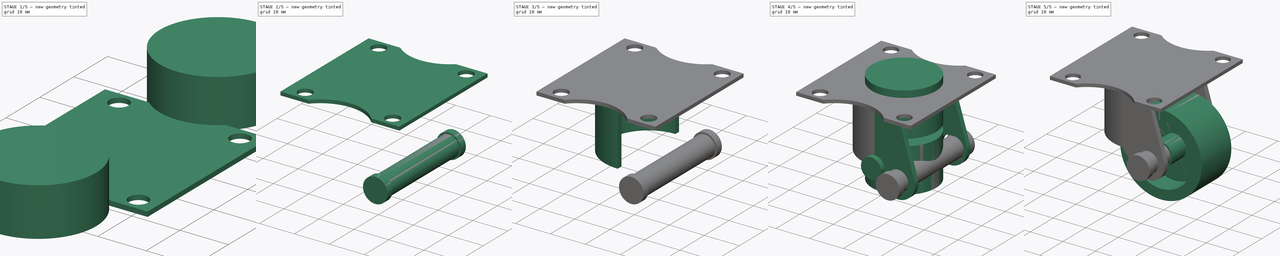
[diagram: build sequence overview — one tinted view per stage of 5, left to right]
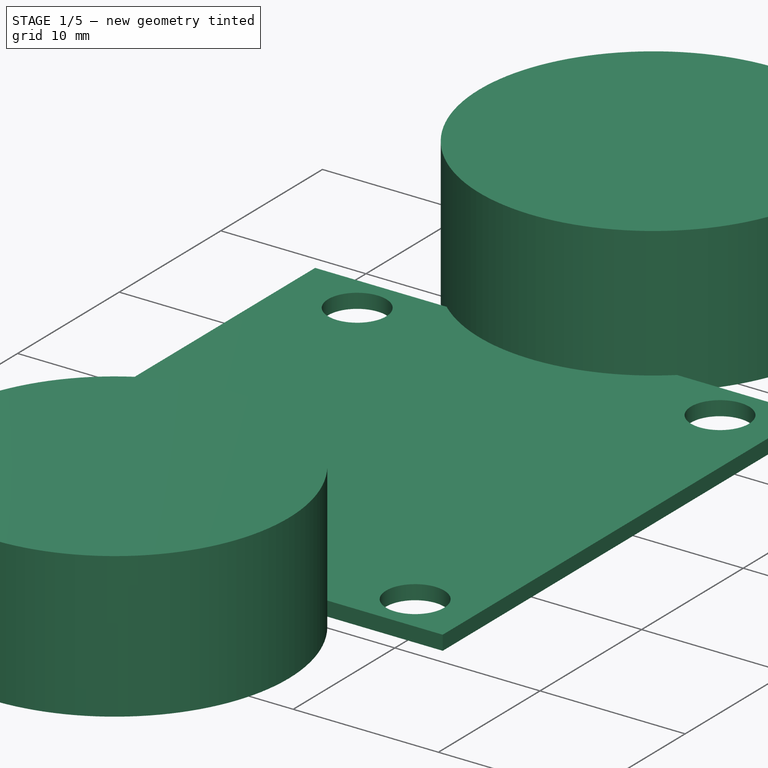
[diagram: stage 1 of 5 — iso view after this stage's code; geometry added in this stage tinted green]
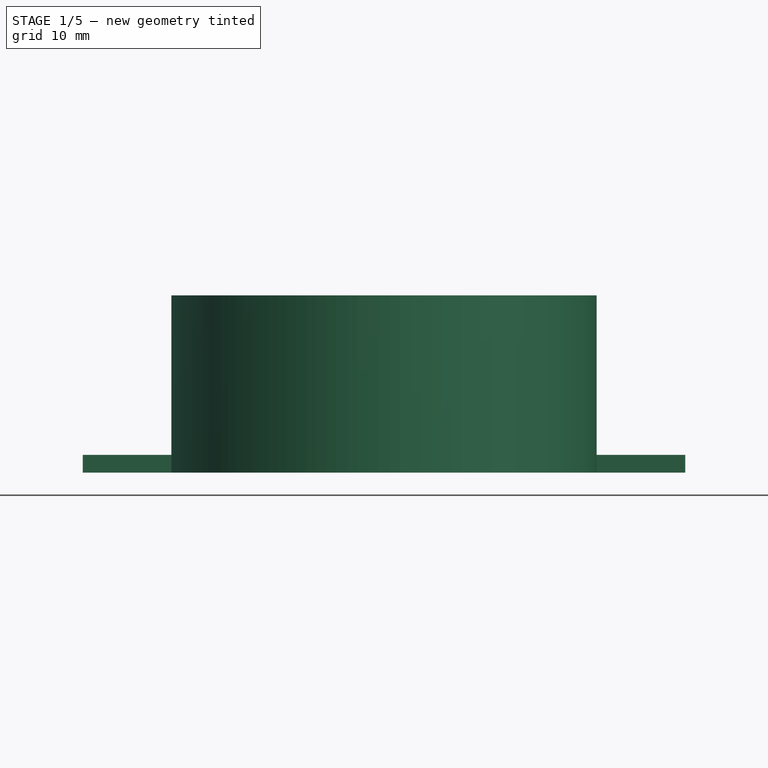
[diagram: stage 1 of 5 — front view after this stage's code; geometry added in this stage tinted green]
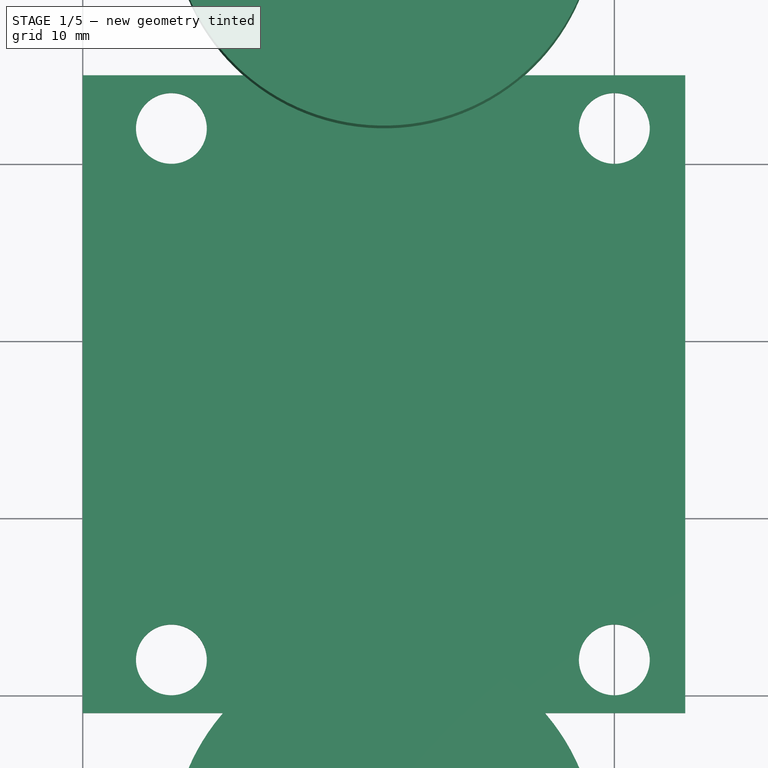
[diagram: stage 1 of 5 — top view after this stage's code; geometry added in this stage tinted green]
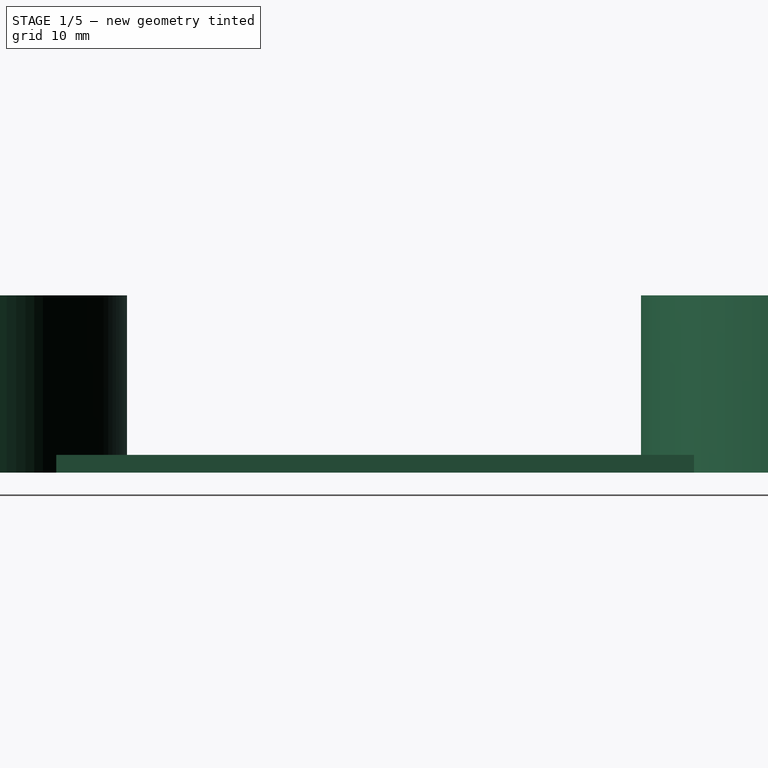
[diagram: stage 1 of 5 — right view after this stage's code; geometry added in this stage tinted green]
FCSTD DOCUMENT  (FreeCAD 0.17R13541 (Git))
Label: ruedaLoca(inexacta)
License: All rights reserved
LicenseURL: http://en.wikipedia.org/wiki/All_rights_reserved
objects: Part::Cylinder×14, Part::MultiFuse×6, Part::Cut×6, Part::Box×3, Sketcher::SketchObject×2, PartDesign::Pad×2, PartDesign::Body×2, Part::Sphere×1, Part::FeaturePython×1, Part::Feature×1
note: 40 computed .brp shape members not serialized (recipe doc carries the construction recipe); baked Part::Feature solids carry a one-line shape summary decoded from their .brp

FEATURE [Part::Box] Box002  label="Cubo002"
  AttacherType = Attacher::AttachEngine3D
  Height = 1
  Length = 34
  Placement = pos=(0,-1,0) rot=(0,0,1;0rad)
  Width = 36
FEATURE [Part::Cylinder] Cylinder011  label="Cilindro011"
  Angle = 360
  AttacherType = Attacher::AttachEngine3D
  Height = 10
  Radius = 2
FEATURE [Part::FeaturePython] Array  # Draft array (typed FeaturePython)
  Angle = 360
  ArrayType = 0
  Axis = (0,0,1)
  Base = -> Cylinder011
  Center = (0,0,0)
  Fuse = false
  IntervalAxis = (0,0,0)
  IntervalX = (25,0,0)
  IntervalY = (0,30,0)
  IntervalZ = (0,0,0)
  NumberPolar = 1
  NumberX = 2
  NumberY = 2
  NumberZ = 1
  Placement = pos=(5,2,0) rot=(0,0,1;0rad)
FEATURE [Part::Cut] Cut004
  Base = -> Box002
  Tool = -> Array
FEATURE [Part::Cylinder] Cylinder012  label="Cilindro012"
  Angle = 360
  AttacherType = Attacher::AttachEngine3D
  Height = 10
  Placement = pos=(17,-9,0) rot=(0,0,1;0rad)
  Radius = 12
FEATURE [Part::Cylinder] Cylinder013  label="Cilindro013"
  Angle = 360
  AttacherType = Attacher::AttachEngine3D
  Height = 10
  Placement = pos=(17,44,0) rot=(0,0,1;0rad)
  Radius = 12
FEATURE [Part::MultiFuse] Fusion004
  Shapes = -> [Cylinder012,Cylinder013]
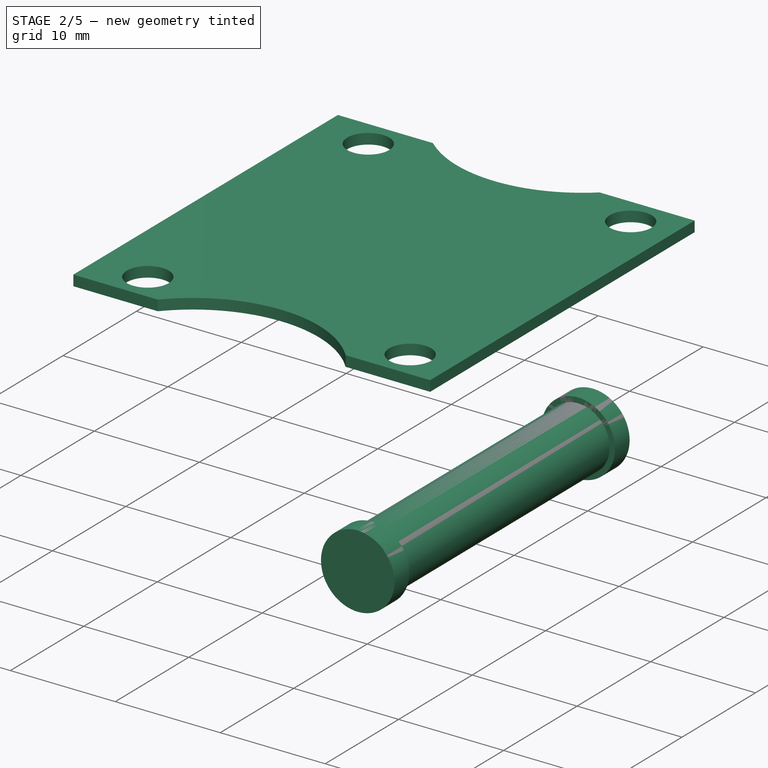
[diagram: stage 2 of 5 — iso view after this stage's code; geometry added in this stage tinted green]
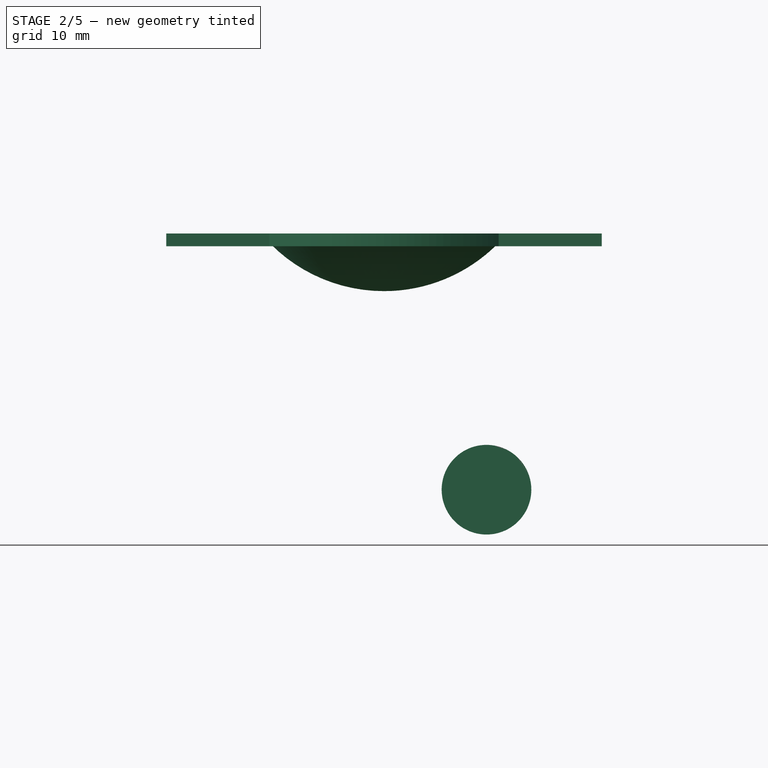
[diagram: stage 2 of 5 — front view after this stage's code; geometry added in this stage tinted green]
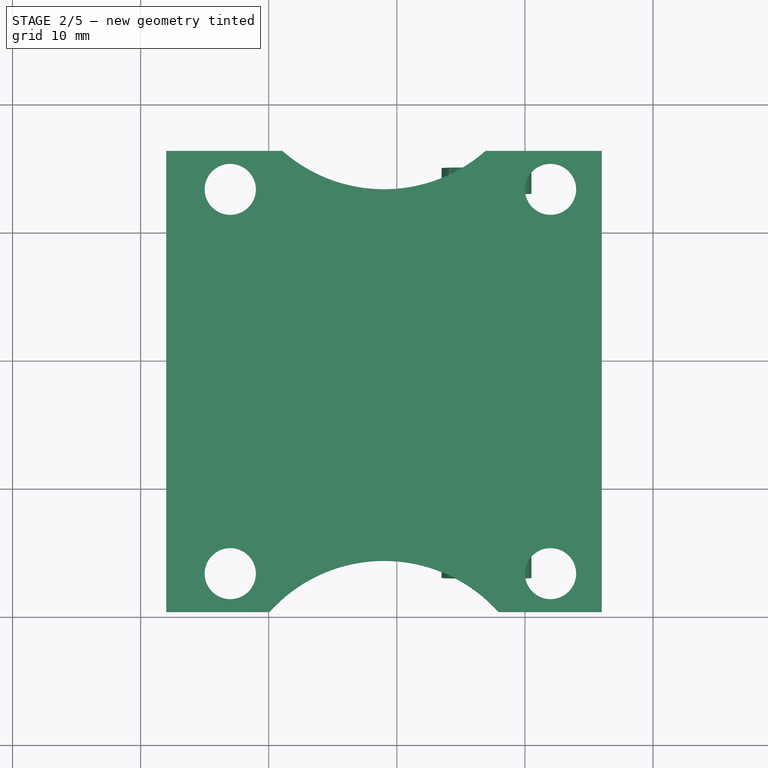
[diagram: stage 2 of 5 — top view after this stage's code; geometry added in this stage tinted green]
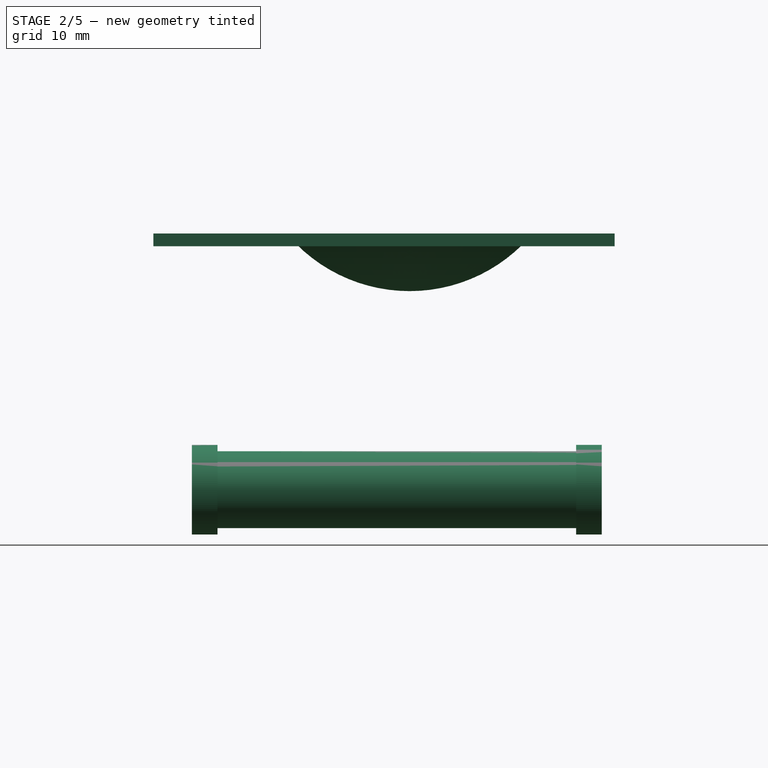
[diagram: stage 2 of 5 — right view after this stage's code; geometry added in this stage tinted green]
FEATURE [Part::Cylinder] Cylinder008  label="Cilindro008"
  Angle = 360
  AttacherType = Attacher::AttachEngine3D
  Height = 30
  Placement = pos=(7,15,-2) rot=(1,0,0;1.5708rad)
  Radius = 3
FEATURE [Part::Cylinder] Cylinder009  label="Cilindro009"
  Angle = 360
  AttacherType = Attacher::AttachEngine3D
  Height = 2
  Placement = pos=(7,15,-2) rot=(1,0,0;1.5708rad)
  Radius = 3.5
FEATURE [Part::Cylinder] Cylinder010  label="Cilindro010"
  Angle = 360
  AttacherType = Attacher::AttachEngine3D
  Height = 2
  Placement = pos=(7,-15,-2) rot=(1,0,0;1.5708rad)
  Radius = 3.5
FEATURE [Part::MultiFuse] Fusion003  label="remache"
  Shapes = -> [Cylinder010,Cylinder009,Cylinder008]
FEATURE [Part::Sphere] Sphere  label="Esfera"
  Angle1 = -90
  Angle2 = -45
  Angle3 = 360
  AttacherType = Attacher::AttachEngine3D
  Placement = pos=(-1,0,26) rot=(0,0,1;0rad)
  Radius = 12.5
FEATURE [Part::Cut] Cut005  label="plataforma"
  Base = -> Cut004
  Placement = pos=(-18,-19,17) rot=(0,0,1;0rad)
  Tool = -> Fusion004
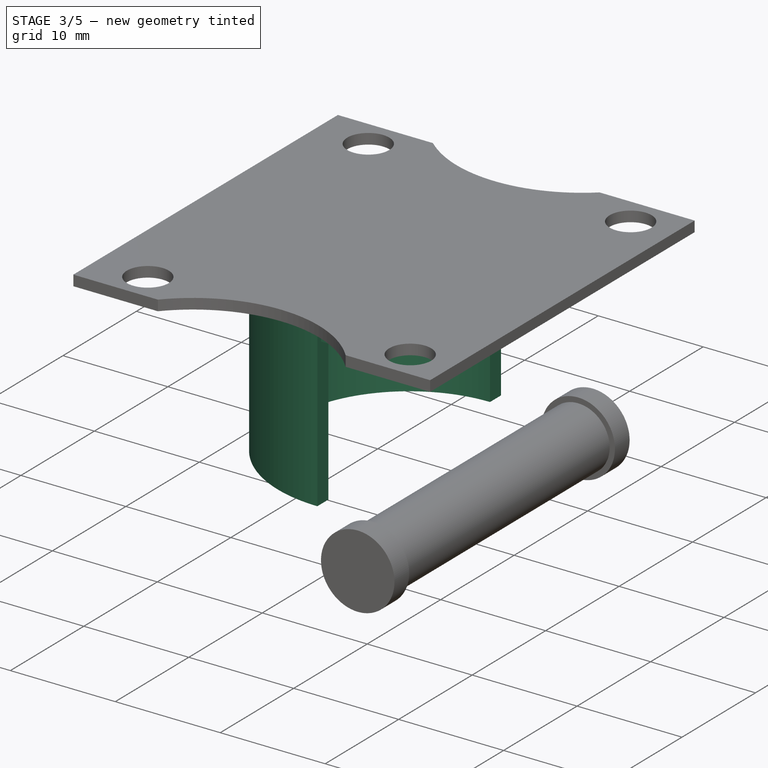
[diagram: stage 3 of 5 — iso view after this stage's code; geometry added in this stage tinted green]
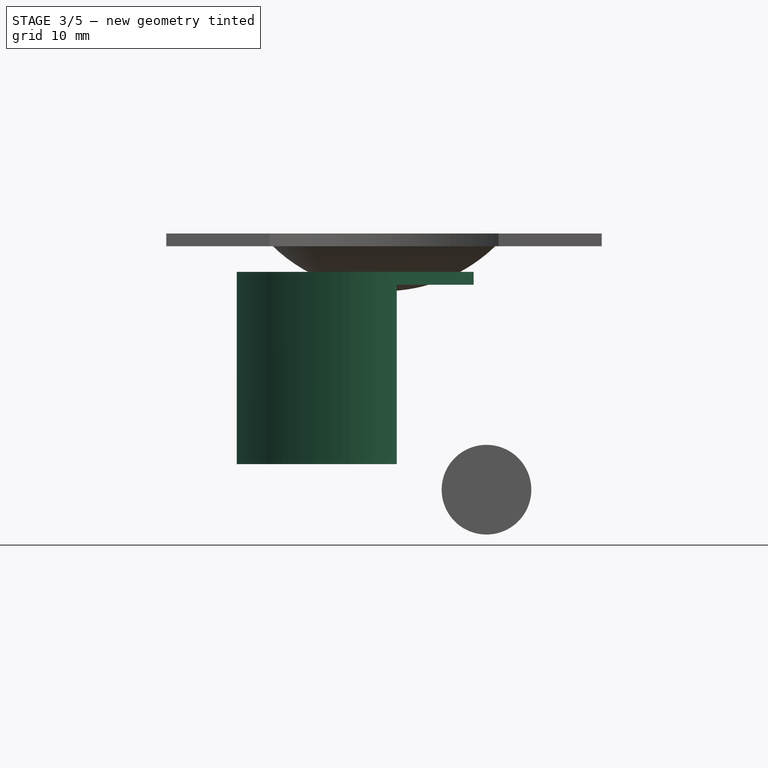
[diagram: stage 3 of 5 — front view after this stage's code; geometry added in this stage tinted green]
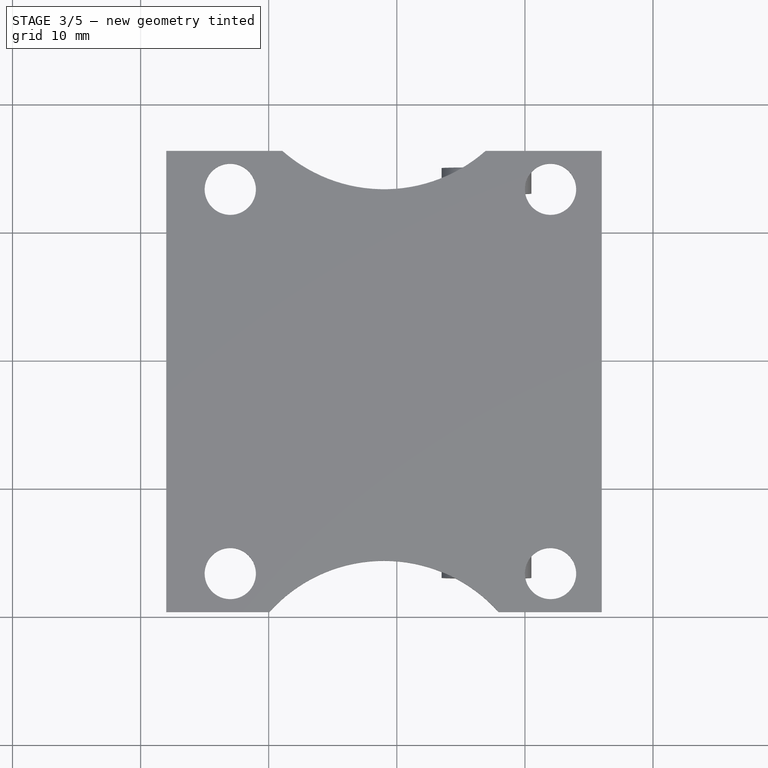
[diagram: stage 3 of 5 — top view after this stage's code; geometry added in this stage tinted green]
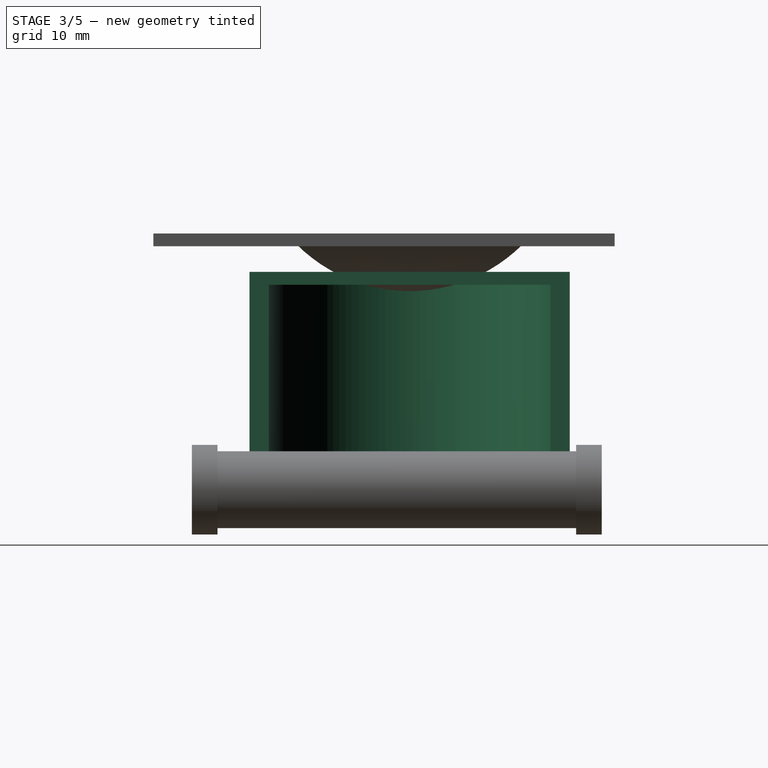
[diagram: stage 3 of 5 — right view after this stage's code; geometry added in this stage tinted green]
FEATURE [PartDesign::Body] Body  label="perfilRod1"
  Group = -> [Sketch,Pad]
  Origin = -> Origin
  Placement = pos=(7,-11,-2) rot=(0,0,1;0rad)
  Tip = -> Pad
FEATURE [Part::Cylinder] Cylinder005  label="Cilindro005"
  Angle = 180
  AttacherType = Attacher::AttachEngine3D
  Height = 15
  Placement = pos=(0,0,0) rot=(0,0,1;1.5708rad)
  Radius = 12.5
FEATURE [Part::Cylinder] Cylinder006  label="Cilindro006"
  Angle = 180
  AttacherType = Attacher::AttachEngine3D
  Height = 15
  Placement = pos=(0,0,0) rot=(0,0,1;1.5708rad)
  Radius = 11
FEATURE [Part::Cut] Cut002
  Base = -> Cylinder005
  Tool = -> Cylinder006
FEATURE [PartDesign::Body] Body001  label="perfilRod002"
  Group = -> [Sketch001,Pad001]
  Origin = -> Origin001
  Placement = pos=(6,12.5,-2) rot=(0,0,1;0rad)
  Tip = -> Pad001
FEATURE [Part::Box] Box  label="Cubo"
  AttacherType = Attacher::AttachEngine3D
  Height = 14
  Length = 18
  Placement = pos=(0,-11,-2) rot=(0,0,1;0rad)
  Width = 22
FEATURE [Part::Cut] Cut003
  Base = -> Cut002
  Tool = -> Box
FEATURE [Part::Box] Box001  label="Cubo001"
  AttacherType = Attacher::AttachEngine3D
  Height = 1
  Length = 6
  Placement = pos=(0,-12,14) rot=(0,0,1;0rad)
  Width = 23
FEATURE [Part::Cylinder] Cylinder007  label="Cilindro007"
  Angle = 180
  AttacherType = Attacher::AttachEngine3D
  Height = 1
  Placement = pos=(0,0,14) rot=(0,0,1;1.5708rad)
  Radius = 12.5
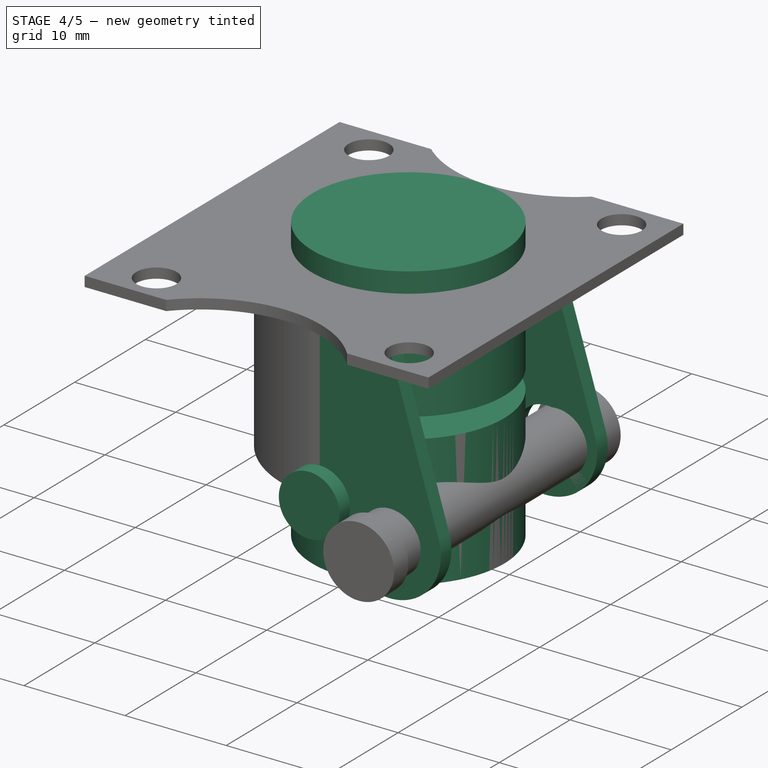
[diagram: stage 4 of 5 — iso view after this stage's code; geometry added in this stage tinted green]
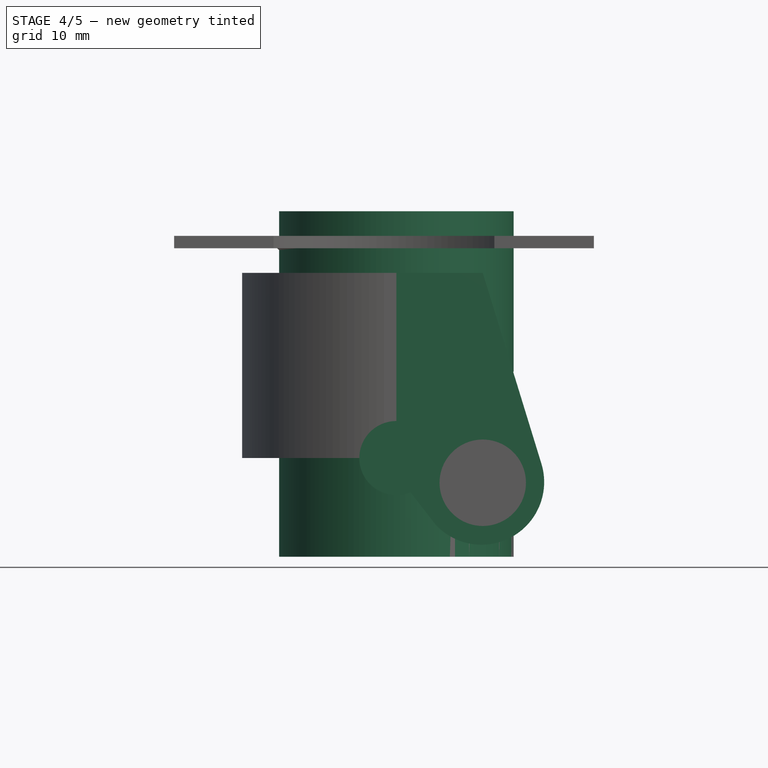
[diagram: stage 4 of 5 — front view after this stage's code; geometry added in this stage tinted green]
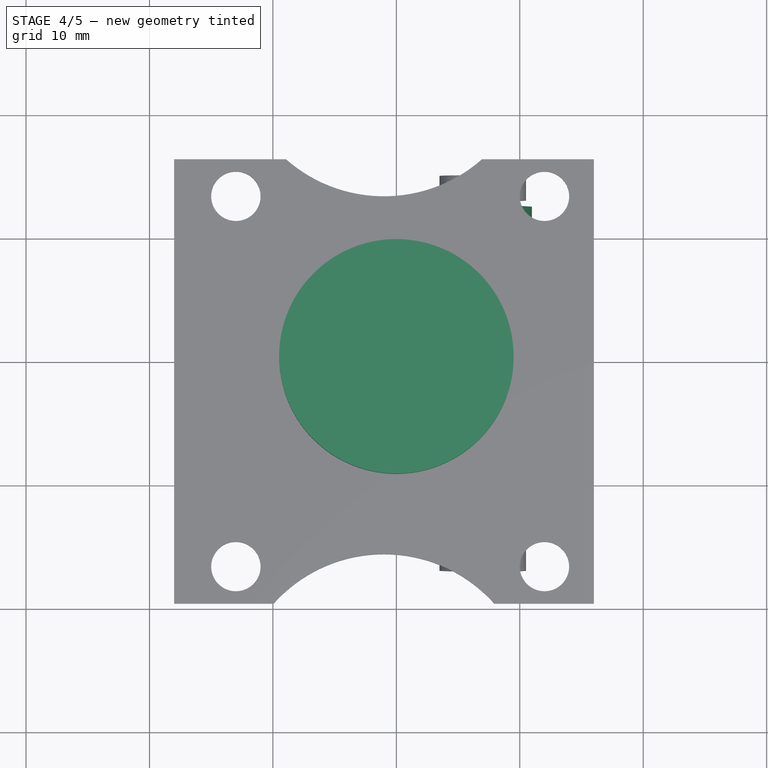
[diagram: stage 4 of 5 — top view after this stage's code; geometry added in this stage tinted green]
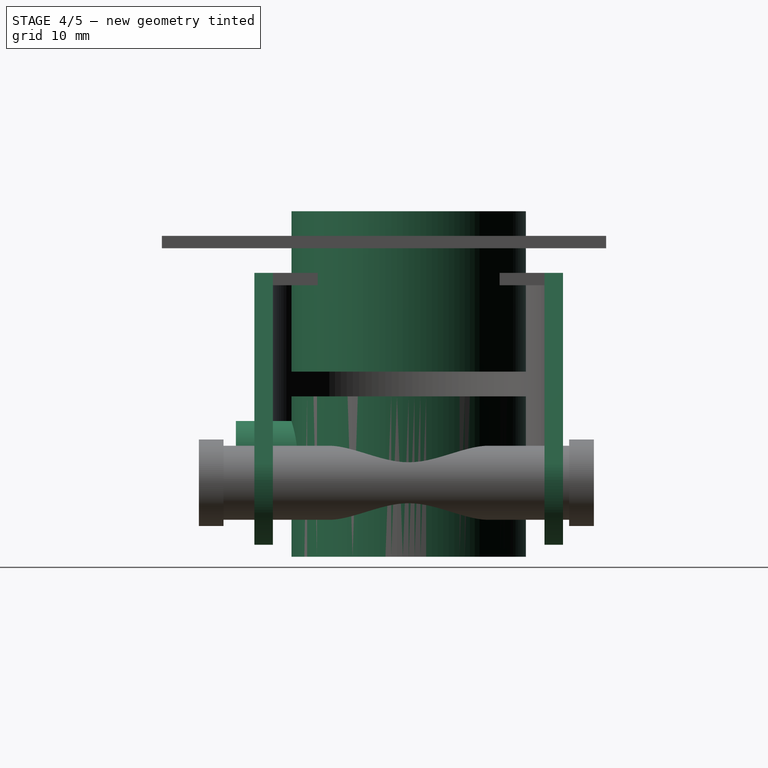
[diagram: stage 4 of 5 — right view after this stage's code; geometry added in this stage tinted green]
FEATURE [Part::Cylinder] Cylinder002  label="Cilindro002"
  Angle = 360
  AttacherType = Attacher::AttachEngine3D
  Height = 13
  Placement = pos=(0,0,7) rot=(0,0,1;0rad)
  Radius = 9.5
FEATURE [Part::Cylinder] Cylinder003  label="Cilindro003"
  Angle = 360
  AttacherType = Attacher::AttachEngine3D
  Height = 13
  Placement = pos=(0,0,-8) rot=(0,0,1;0rad)
  Radius = 9.5
FEATURE [Part::Cylinder] Cylinder004  label="Cilindro004"
  Angle = 360
  AttacherType = Attacher::AttachEngine3D
  Height = 15
  Placement = pos=(0,1,0) rot=(1,0,0;1.5708rad)
  Radius = 3
FEATURE [Sketcher::SketchObject] Sketch
  MapMode = 5
  Placement = pos=(0,0,0) rot=(1,0,0;1.5708rad)
  Support = -> [XZ_Plane]
  sketch-geometry (6):
    g0: LineSegment StartX=-8 StartY=17 StartZ=0 EndX=0 EndY=17 EndZ=0
    g1: LineSegment StartX=-8 StartY=17 StartZ=0 EndX=-8 EndY=2 EndZ=0
    g2: LineSegment StartX=0 StartY=17 StartZ=0 EndX=4.77442 EndY=1.47107 EndZ=0
    g3: LineSegment StartX=-8 StartY=2 StartZ=0 EndX=-3.7836 EndY=-3.43751 EndZ=0
    g4: ArcOfCircle CenterX=-0.100848 CenterY=0.0563439 CenterZ=0 NormalX=0 NormalY=0 NormalZ=1 AngleXU=0 Radius=5.07638 StartAngle=3.90067 EndAngle=6.56561
    g5: Circle CenterX=0 CenterY=0 CenterZ=0 NormalX=0 NormalY=0 NormalZ=1 AngleXU=0 Radius=3
  constraints (12):
    c: Horizontal(g0)
    c: DistanceX(g-1,g0) = 0
    c: DistanceX(g0,g0) = 8
    c: Vertical(g1)
    c: DistanceY(g1,g1) = 15
    c: Coincident(g2,g0)
    c: Coincident(g0,g1)
    c: DistanceY(g-1,g0) = 17
    c: Coincident(g3,g1)
    c: Radius(g5) = 3
    c: Coincident(g4,g2)
    c: Coincident(g3,g4)
FEATURE [PartDesign::Pad] Pad
  Length = 1.5
  Length2 = 100
  Placement = pos=(0,0,0) rot=(1,0,0;1.5708rad)
  Profile = -> Sketch
  Type = 0
FEATURE [Sketcher::SketchObject] Sketch001
  MapMode = 5
  Placement = pos=(0,0,0) rot=(1,0,0;1.5708rad)
  Support = -> [XZ_Plane001]
  sketch-geometry (6):
    g0: LineSegment StartX=-8 StartY=17 StartZ=0 EndX=0 EndY=17 EndZ=0
    g1: LineSegment StartX=-8 StartY=17 StartZ=0 EndX=-8 EndY=2 EndZ=0
    g2: LineSegment StartX=0 StartY=17 StartZ=0 EndX=4.77442 EndY=1.47107 EndZ=0
    g3: LineSegment StartX=-8 StartY=2 StartZ=0 EndX=-3.7836 EndY=-3.43751 EndZ=0
    g4: ArcOfCircle CenterX=-0.100848 CenterY=0.0563439 CenterZ=0 NormalX=0 NormalY=0 NormalZ=1 AngleXU=0 Radius=5.07638 StartAngle=3.90067 EndAngle=6.56561
    g5: Circle CenterX=0 CenterY=0 CenterZ=0 NormalX=0 NormalY=0 NormalZ=1 AngleXU=0 Radius=3
  constraints (12):
    c: Horizontal(g0)
    c: DistanceX(g-1,g0) = 0
    c: DistanceX(g0,g0) = 8
    c: Vertical(g1)
    c: DistanceY(g1,g1) = 15
    c: Coincident(g2,g0)
    c: Coincident(g0,g1)
    c: DistanceY(g-1,g0) = 17
    c: Coincident(g3,g1)
    c: Radius(g5) = 3
    c: Coincident(g4,g2)
    c: Coincident(g3,g4)
FEATURE [PartDesign::Pad] Pad001
  Length = 1.5
  Length2 = 100
  Placement = pos=(0,0,0) rot=(1,0,0;1.5708rad)
  Profile = -> Sketch001
  Type = 0
FEATURE [Part::MultiFuse] Fusion002  label="cuerpoRodamiento"
  Shapes = -> [Cylinder007,Box001,Cut003,Body001,Body]
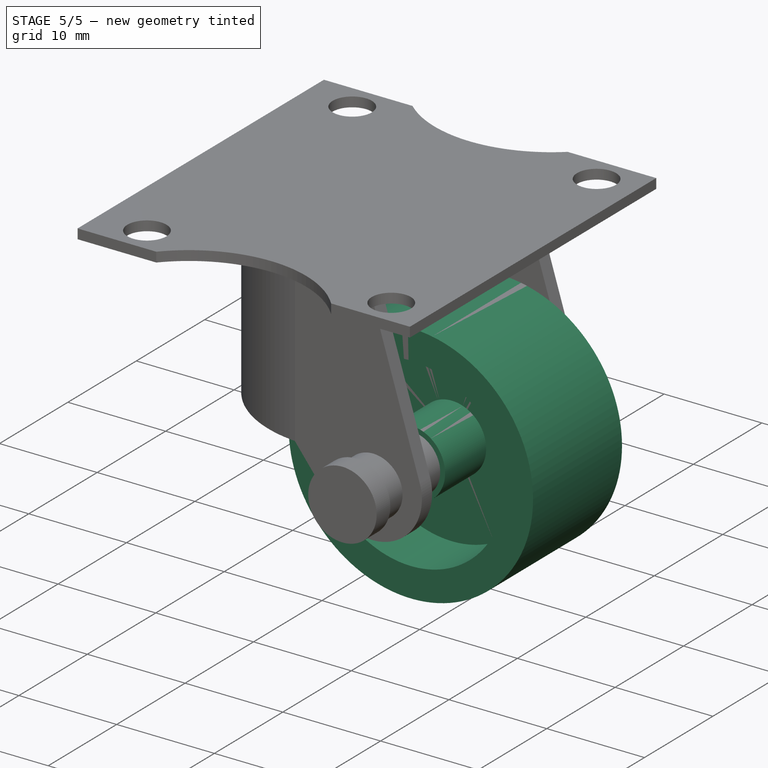
[diagram: stage 5 of 5 — iso view after this stage's code; geometry added in this stage tinted green]
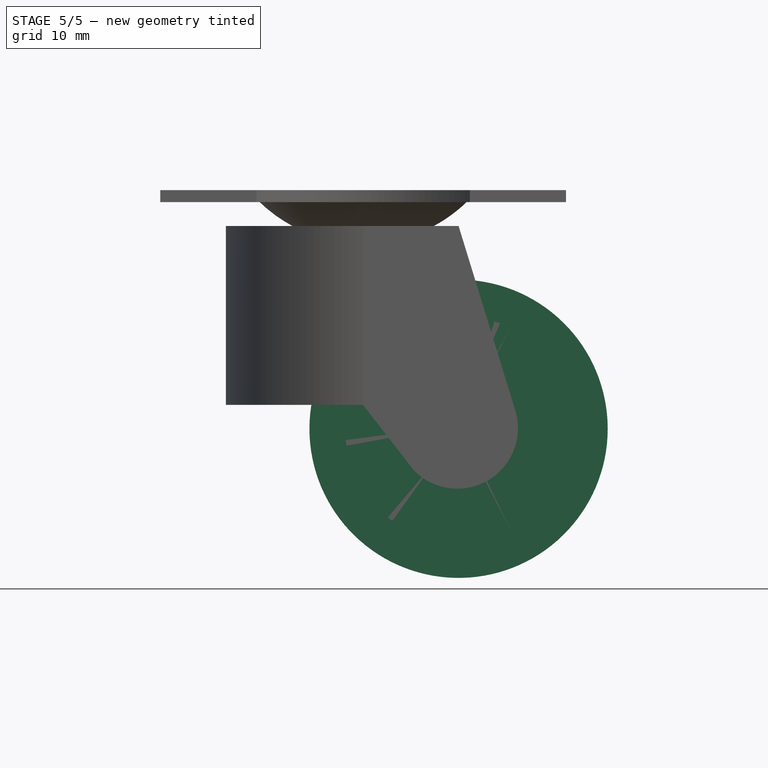
[diagram: stage 5 of 5 — front view after this stage's code; geometry added in this stage tinted green]
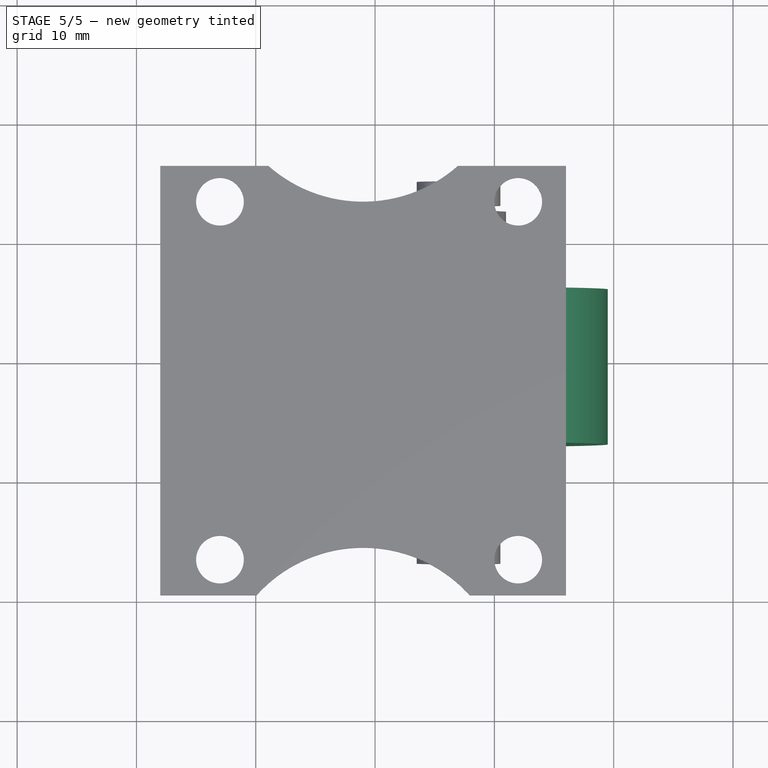
[diagram: stage 5 of 5 — top view after this stage's code; geometry added in this stage tinted green]
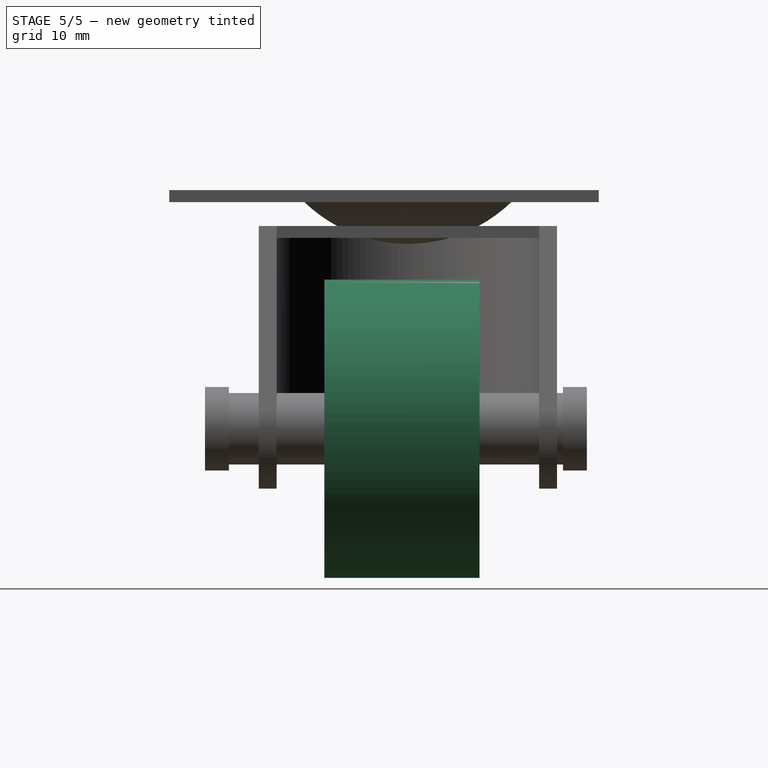
[diagram: stage 5 of 5 — right view after this stage's code; geometry added in this stage tinted green]
FEATURE [Part::Cylinder] Cylinder  label="Cilindro"
  Angle = 360
  AttacherType = Attacher::AttachEngine3D
  Height = 13
  Radius = 12.5
FEATURE [Part::Cylinder] Cylinder001  label="Cilindro001"
  Angle = 360
  AttacherType = Attacher::AttachEngine3D
  Height = 13
  Radius = 3.5
FEATURE [Part::MultiFuse] Fusion
  Shapes = -> [Cylinder002,Cylinder003]
FEATURE [Part::Cut] Cut
  Base = -> Cylinder
  Tool = -> Fusion
FEATURE [Part::MultiFuse] Fusion001  label="R"
  Placement = pos=(0,0,0) rot=(1,0,0;1.5708rad)
  Shapes = -> [Cylinder001,Cut]
FEATURE [Part::Cut] Cut001  label="rueda"
  Base = -> Fusion001
  Placement = pos=(7,6,-2) rot=(0,0,1;0rad)
  Tool = -> Cylinder004
FEATURE [Part::MultiFuse] Fusion005  label="ruedaLoca25x13"
  Shapes = -> [Cut005,Fusion002,Cut001,Fusion003,Sphere]
FEATURE [Part::Feature] Fusion005_solid  label="ruedaLoca25x13 (Solid)"
  shape: bbox 37.5 x 36 x 32.5 mm, 67 faces (baked)
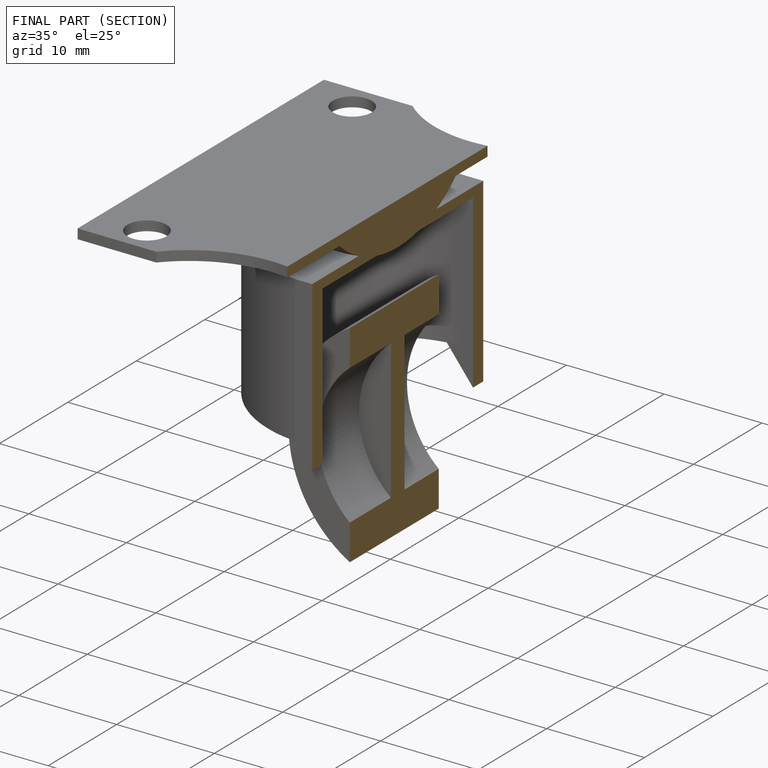
[diagram: finished part — half-section view (interior)]
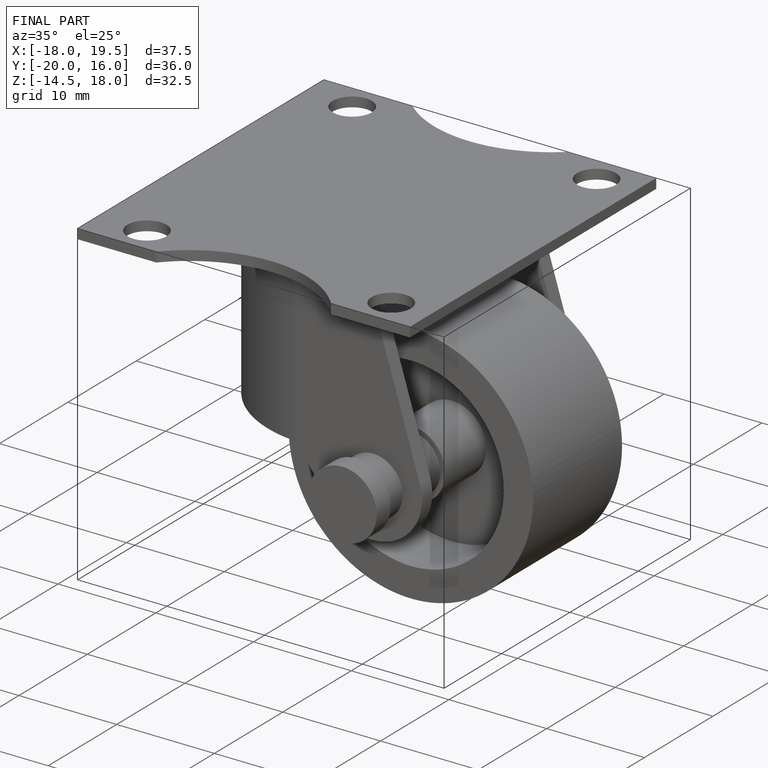
[diagram: finished part — iso view with bounding-box wireframe]
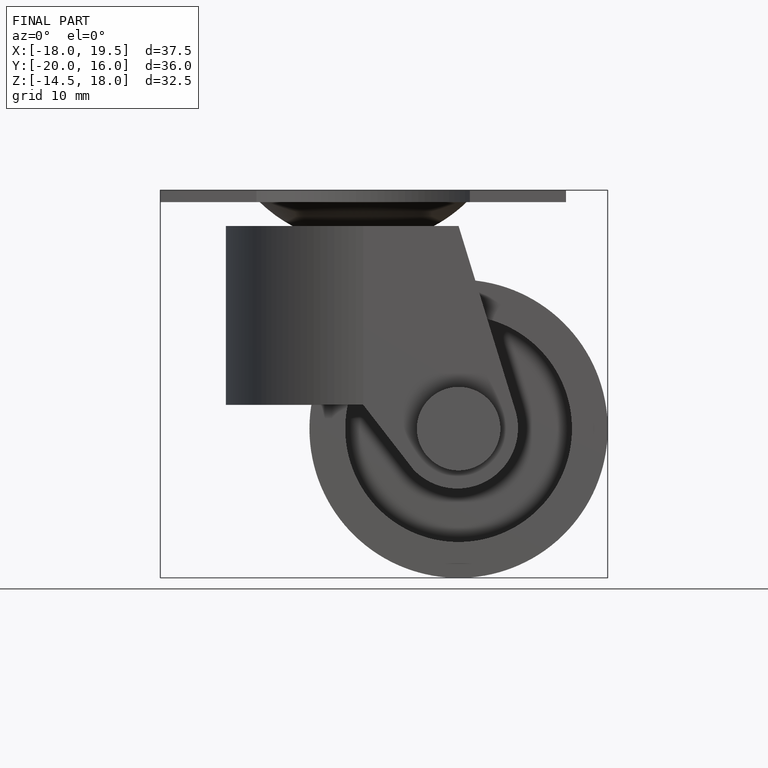
[diagram: finished part — front view with bounding-box wireframe]
